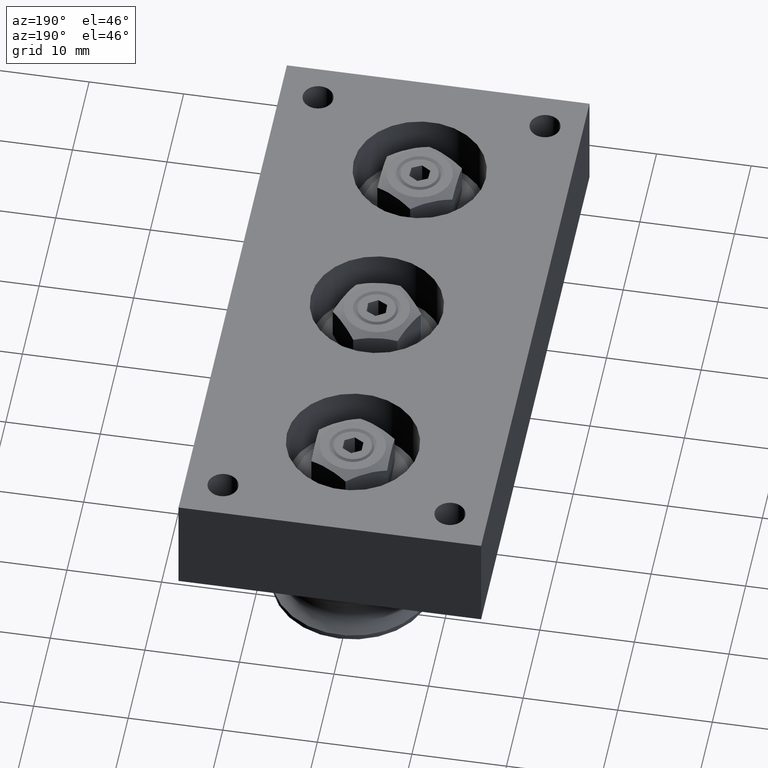
[diagram: clean part render]
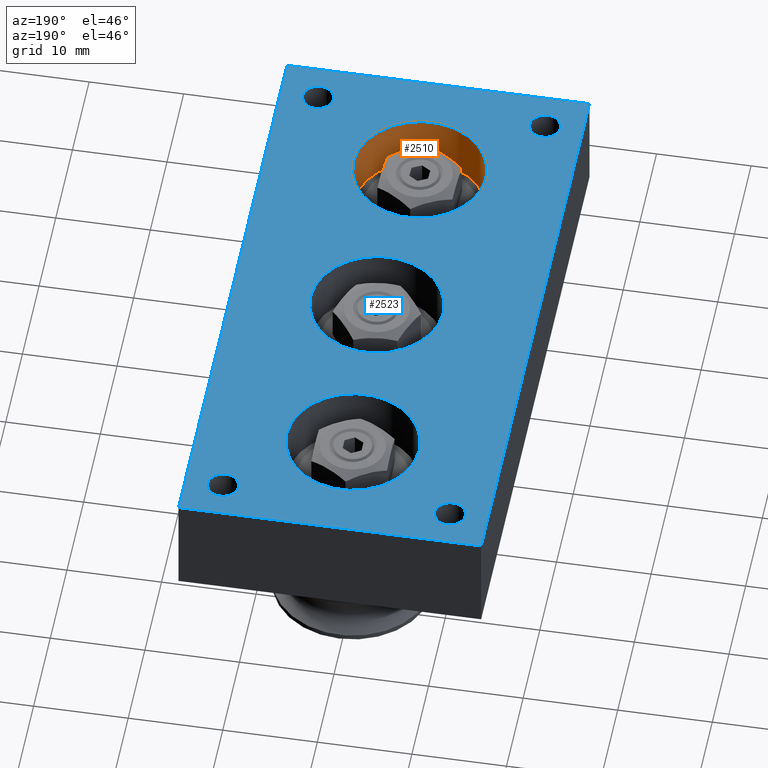
[diagram: same view with the hole feature highlighted: cylindrical wall and planar end face, labeled with their STEP entity ids]
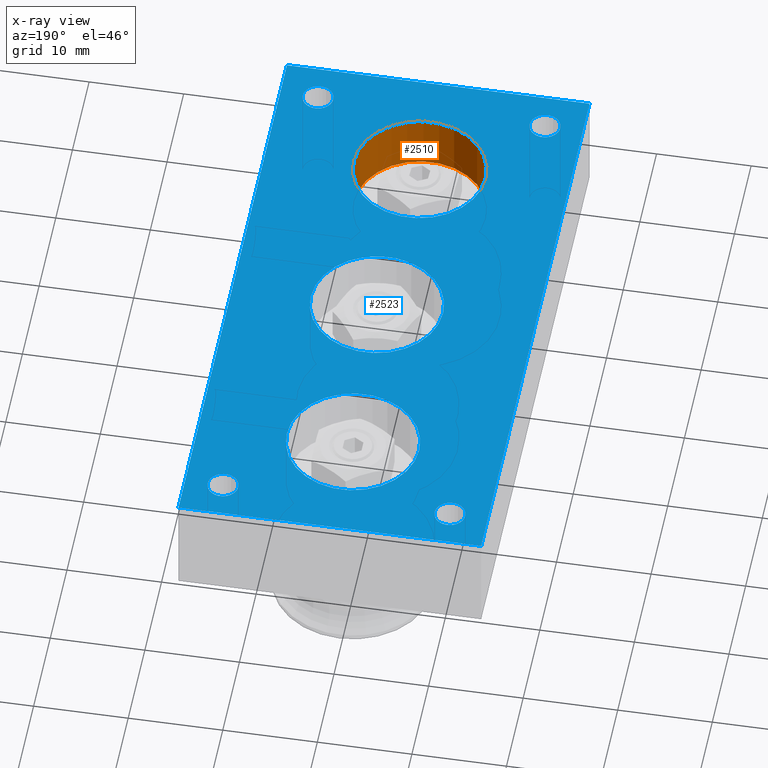
[diagram: x-ray of the same camera — body ghosted, the hole faces saturated]
A machine part, auxiliary view. The highlighted faces form one hole feature of diameter 14 mm: the cylindrical wall (entity #2510, orange) and its adjacent planar end face (entity #2523, blue) — they share a circular edge in the B-rep.
The next image is the same camera in x-ray (body ghosted, the hole faces saturated) — the bore reads through the body.
Wall:
#238=CYLINDRICAL_SURFACE('',#2875,7.);
#290=FACE_OUTER_BOUND('',#452,.T.);
#452=EDGE_LOOP('',(#1794,#1795,#1796,#1797));
#645=LINE('',#4076,#847);
#847=VECTOR('',#3231,7.);
#1051=CIRCLE('',#2873,7.);
#1053=CIRCLE('',#2876,7.);
#1195=VERTEX_POINT('',#4069);
#1197=VERTEX_POINT('',#4074);
#1426=EDGE_CURVE('',#1195,#1195,#1051,.T.);
#1428=EDGE_CURVE('',#1197,#1197,#1053,.T.);
#1429=EDGE_CURVE('',#1197,#1195,#645,.T.);
#1794=ORIENTED_EDGE('',*,*,#1428,.F.);
#1795=ORIENTED_EDGE('',*,*,#1429,.T.);
#1796=ORIENTED_EDGE('',*,*,#1426,.F.);
#1797=ORIENTED_EDGE('',*,*,#1429,.F.);
#2510=ADVANCED_FACE('',(#290),#238,.F.);
#2873=AXIS2_PLACEMENT_3D('',#4070,#3223,#3224);
#2875=AXIS2_PLACEMENT_3D('',#4073,#3227,#3228);
#2876=AXIS2_PLACEMENT_3D('',#4075,#3229,#3230);
#3223=DIRECTION('center_axis',(0.,0.,1.));
#3224=DIRECTION('ref_axis',(1.,0.,0.));
#3227=DIRECTION('center_axis',(0.,0.,1.));
#3228=DIRECTION('ref_axis',(1.,0.,0.));
#3229=DIRECTION('center_axis',(0.,0.,-1.));
#3230=DIRECTION('ref_axis',(1.,0.,0.));
#3231=DIRECTION('',(0.,0.,-1.));
#4069=CARTESIAN_POINT('',(-7.25,-20.,5.));
#4070=CARTESIAN_POINT('Origin',(-0.250000000000001,-20.,5.));
#4073=CARTESIAN_POINT('Origin',(-0.250000000000001,-20.,8.));
#4074=CARTESIAN_POINT('',(-7.25,-20.,11.));
#4075=CARTESIAN_POINT('Origin',(-0.250000000000001,-20.,11.));
#4076=CARTESIAN_POINT('',(-7.25,-20.,8.));
End face:
#113=FACE_BOUND('',#469,.T.);
#114=FACE_BOUND('',#470,.T.);
#115=FACE_BOUND('',#471,.T.);
#116=FACE_BOUND('',#472,.T.);
#117=FACE_BOUND('',#473,.T.);
#118=FACE_BOUND('',#474,.T.);
#119=FACE_BOUND('',#475,.T.);
#152=PLANE('',#2902);
#303=FACE_OUTER_BOUND('',#468,.T.);
#468=EDGE_LOOP('',(#1846,#1847,#1848,#1849));
#469=EDGE_LOOP('',(#1850));
#470=EDGE_LOOP('',(#1851));
#471=EDGE_LOOP('',(#1852));
#472=EDGE_LOOP('',(#1853));
#473=EDGE_LOOP('',(#1854));
#474=EDGE_LOOP('',(#1855));
#475=EDGE_LOOP('',(#1856));
#653=LINE('',#4121,#855);
#657=LINE('',#4129,#859);
#660=LINE('',#4135,#862);
#663=LINE('',#4140,#865);
#855=VECTOR('',#3283,10.);
#859=VECTOR('',#3289,10.);
#862=VECTOR('',#3294,10.);
#865=VECTOR('',#3299,10.);
#1049=CIRCLE('',#2869,7.);
#1053=CIRCLE('',#2876,7.);
#1057=CIRCLE('',#2883,7.);
#1059=CIRCLE('',#2887,1.621);
#1061=CIRCLE('',#2890,1.621);
#1063=CIRCLE('',#2893,1.621);
#1065=CIRCLE('',#2896,1.621);
#1193=VERTEX_POINT('',#4061);
#1197=VERTEX_POINT('',#4074);
#1201=VERTEX_POINT('',#4087);
#1203=VERTEX_POINT('',#4095);
#1205=VERTEX_POINT('',#4101);
#1207=VERTEX_POINT('',#4107);
#1209=VERTEX_POINT('',#4113);
#1211=VERTEX_POINT('',#4119);
#1212=VERTEX_POINT('',#4120);
#1215=VERTEX_POINT('',#4128);
#1217=VERTEX_POINT('',#4134);
#1422=EDGE_CURVE('',#1193,#1193,#1049,.T.);
#1428=EDGE_CURVE('',#1197,#1197,#1053,.T.);
#1434=EDGE_CURVE('',#1201,#1201,#1057,.T.);
#1438=EDGE_CURVE('',#1203,#1203,#1059,.T.);
#1441=EDGE_CURVE('',#1205,#1205,#1061,.T.);
#1444=EDGE_CURVE('',#1207,#1207,#1063,.T.);
#1447=EDGE_CURVE('',#1209,#1209,#1065,.T.);
#1450=EDGE_CURVE('',#1211,#1212,#653,.T.);
#1454=EDGE_CURVE('',#1212,#1215,#657,.T.);
#1457=EDGE_CURVE('',#1215,#1217,#660,.T.);
#1460=EDGE_CURVE('',#1217,#1211,#663,.T.);
#1846=ORIENTED_EDGE('',*,*,#1450,.F.);
#1847=ORIENTED_EDGE('',*,*,#1460,.F.);
#1848=ORIENTED_EDGE('',*,*,#1457,.F.);
#1849=ORIENTED_EDGE('',*,*,#1454,.F.);
#1850=ORIENTED_EDGE('',*,*,#1422,.T.);
#1851=ORIENTED_EDGE('',*,*,#1428,.T.);
#1852=ORIENTED_EDGE('',*,*,#1434,.T.);
#1853=ORIENTED_EDGE('',*,*,#1438,.T.);
#1854=ORIENTED_EDGE('',*,*,#1441,.T.);
#1855=ORIENTED_EDGE('',*,*,#1444,.T.);
#1856=ORIENTED_EDGE('',*,*,#1447,.T.);
#2523=ADVANCED_FACE('',(#303,#113,#114,#115,#116,#117,#118,#119),#152,.T.);
#2869=AXIS2_PLACEMENT_3D('',#4062,#3213,#3214);
#2876=AXIS2_PLACEMENT_3D('',#4075,#3229,#3230);
#2883=AXIS2_PLACEMENT_3D('',#4088,#3245,#3246);
#2887=AXIS2_PLACEMENT_3D('',#4096,#3255,#3256);
#2890=AXIS2_PLACEMENT_3D('',#4102,#3262,#3263);
#2893=AXIS2_PLACEMENT_3D('',#4108,#3269,#3270);
#2896=AXIS2_PLACEMENT_3D('',#4114,#3276,#3277);
#2902=AXIS2_PLACEMENT_3D('',#4142,#3301,#3302);
#3213=DIRECTION('center_axis',(0.,0.,-1.));
#3214=DIRECTION('ref_axis',(1.,0.,0.));
#3229=DIRECTION('center_axis',(0.,0.,-1.));
#3230=DIRECTION('ref_axis',(1.,0.,0.));
#3245=DIRECTION('center_axis',(0.,0.,-1.));
#3246=DIRECTION('ref_axis',(1.,0.,0.));
#3255=DIRECTION('center_axis',(0.,0.,-1.));
#3256=DIRECTION('ref_axis',(1.,0.,0.));
#3262=DIRECTION('center_axis',(0.,0.,-1.));
#3263=DIRECTION('ref_axis',(1.,0.,0.));
#3269=DIRECTION('center_axis',(0.,0.,-1.));
#3270=DIRECTION('ref_axis',(1.,0.,0.));
#3276=DIRECTION('center_axis',(0.,0.,-1.));
#3277=DIRECTION('ref_axis',(1.,0.,0.));
#3283=DIRECTION('',(0.,-1.,0.));
#3289=DIRECTION('',(-1.,0.,0.));
#3294=DIRECTION('',(0.,1.,0.));
#3299=DIRECTION('',(1.,0.,0.));
#3301=DIRECTION('center_axis',(0.,0.,1.));
#3302=DIRECTION('ref_axis',(1.,0.,0.));
#4061=CARTESIAN_POINT('',(-6.25,-8.57252759403147E-16,11.));
#4062=CARTESIAN_POINT('Origin',(0.749999999999997,0.,11.));
#4074=CARTESIAN_POINT('',(-7.25,-20.,11.));
#4075=CARTESIAN_POINT('Origin',(-0.250000000000001,-20.,11.));
#4087=CARTESIAN_POINT('',(-7.25,20.,11.));
#4088=CARTESIAN_POINT('Origin',(-0.250000000000001,20.,11.));
#4095=CARTESIAN_POINT('',(-13.621,-28.5,11.));
#4096=CARTESIAN_POINT('Origin',(-12.,-28.5,11.));
#4101=CARTESIAN_POINT('',(10.379,-28.5,11.));
#4102=CARTESIAN_POINT('Origin',(12.,-28.5,11.));
#4107=CARTESIAN_POINT('',(10.379,28.5,11.));
#4108=CARTESIAN_POINT('Origin',(12.,28.5,11.));
#4113=CARTESIAN_POINT('',(-13.621,28.5,11.));
#4114=CARTESIAN_POINT('Origin',(-12.,28.5,11.));
#4119=CARTESIAN_POINT('',(16.,32.5,11.));
#4120=CARTESIAN_POINT('',(16.,-32.5,11.));
#4121=CARTESIAN_POINT('',(16.,32.5,11.));
#4128=CARTESIAN_POINT('',(-16.,-32.5,11.));
#4129=CARTESIAN_POINT('',(16.,-32.5,11.));
#4134=CARTESIAN_POINT('',(-16.,32.5,11.));
#4135=CARTESIAN_POINT('',(-16.,-32.5,11.));
#4140=CARTESIAN_POINT('',(-16.,32.5,11.));
#4142=CARTESIAN_POINT('Origin',(0.,-2.705323209021E-16,11.));